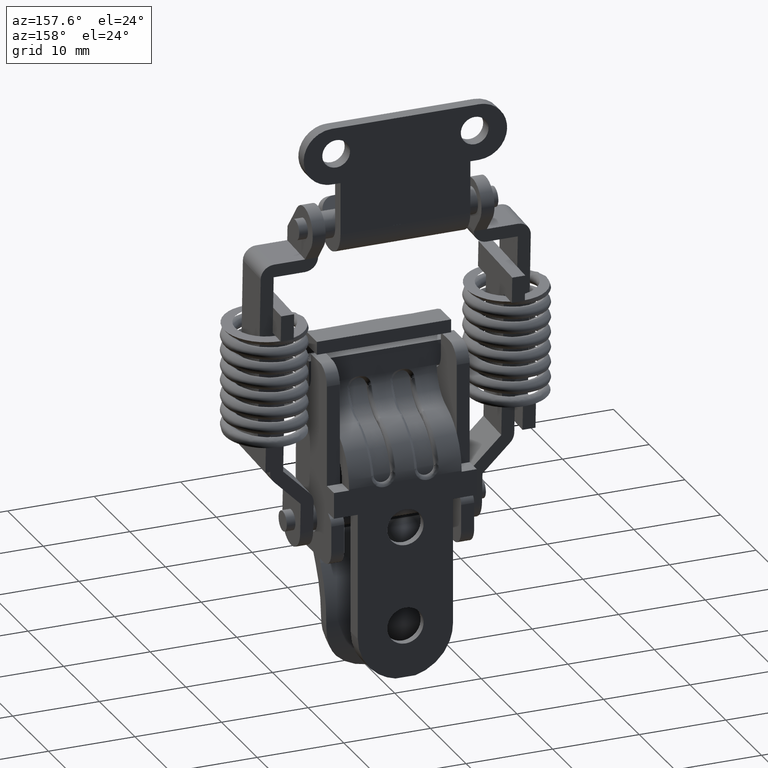
[diagram: clean part render]
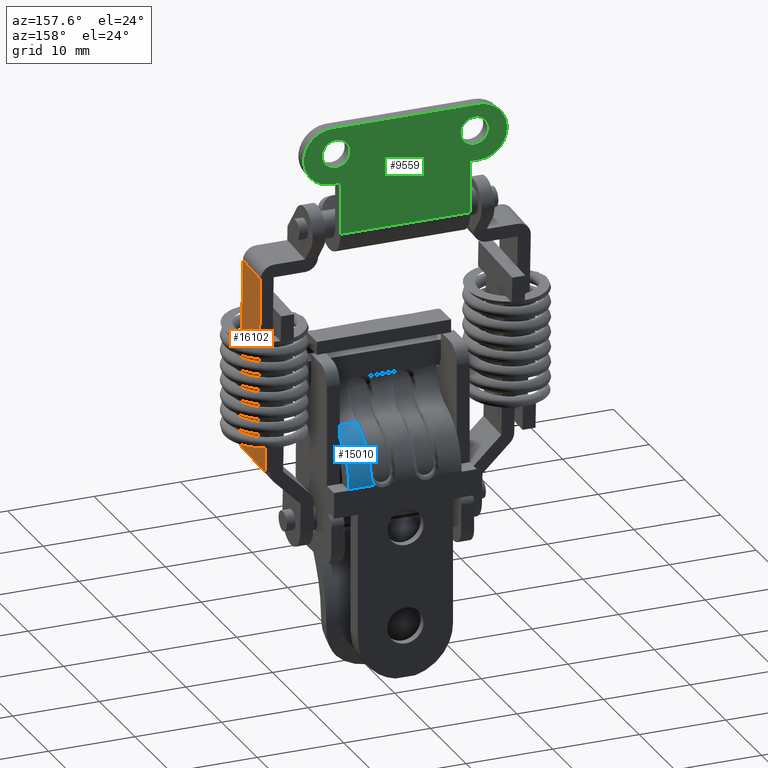
[diagram: same view with three faces highlighted in distinct colors, each labeled with its STEP entity id]
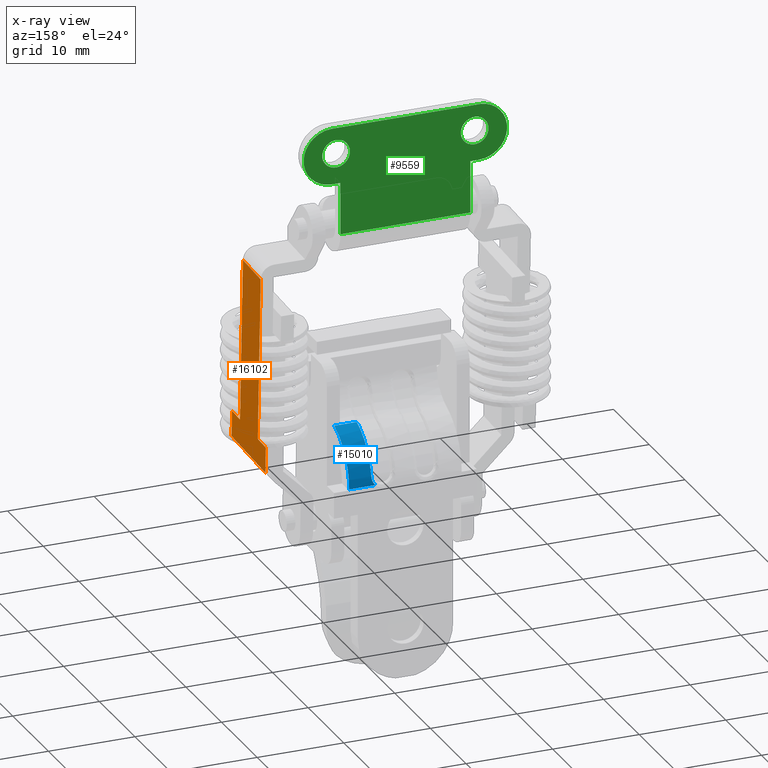
[diagram: x-ray of the same camera — body ghosted, the three highlighted faces saturated]
A machine part, auxiliary view with three faces highlighted in distinct colors.
The next image is the same camera in x-ray (body ghosted, the three faces saturated) — at least one of them is partly hidden behind the body in this view.
Their STEP definitions:

[orange] entity #16102 — the highlighted face is a freeform B-spline surface patch.
#15635=CARTESIAN_POINT('',(-4.499999999999949,-15.600000000000000,-5.0));
#15636=VERTEX_POINT('',#15635);
#15652=CARTESIAN_POINT('',(0.500000000000000,-15.600000000000000,-5.0));
#15653=VERTEX_POINT('',#15652);
#15654=CARTESIAN_POINT('',(0.500000000000000,-15.600000000000000,-5.0));
#15655=CARTESIAN_POINT('',(-4.499999999999949,-15.600000000000000,-5.0));
#15656=QUASI_UNIFORM_CURVE('',1,(#15654,#15655),.UNSPECIFIED.,.F.,.U.);
#15657=EDGE_CURVE('',#15653,#15636,#15656,.T.);
#15696=CARTESIAN_POINT('',(0.500000000000000,-15.600000000000000,-24.0));
#15697=VERTEX_POINT('',#15696);
#15703=CARTESIAN_POINT('',(2.750000000000000,-15.600000000000000,-24.0));
#15704=VERTEX_POINT('',#15703);
#15705=CARTESIAN_POINT('',(2.750000000000000,-15.600000000000000,-24.0));
#15706=CARTESIAN_POINT('',(0.500000000000000,-15.600000000000000,-24.0));
#15707=QUASI_UNIFORM_CURVE('',1,(#15705,#15706),.UNSPECIFIED.,.F.,.U.);
#15708=EDGE_CURVE('',#15704,#15697,#15707,.T.);
#15799=CARTESIAN_POINT('',(0.500000000000000,-15.600000000000000,-24.0));
#15800=CARTESIAN_POINT('',(0.500000000000000,-15.600000000000000,-5.0));
#15801=QUASI_UNIFORM_CURVE('',1,(#15799,#15800),.UNSPECIFIED.,.F.,.U.);
#15802=EDGE_CURVE('',#15697,#15653,#15801,.T.);
#15880=CARTESIAN_POINT('',(-6.750000000000000,-15.600000000000000,-27.0));
#15881=VERTEX_POINT('',#15880);
#15882=CARTESIAN_POINT('',(2.750000000000000,-15.600000000000000,-27.0));
#15883=VERTEX_POINT('',#15882);
#15884=CARTESIAN_POINT('',(-6.750000000000000,-15.600000000000000,-27.0));
#15885=CARTESIAN_POINT('',(2.750000000000000,-15.600000000000000,-27.0));
#15886=QUASI_UNIFORM_CURVE('',1,(#15884,#15885),.UNSPECIFIED.,.F.,.U.);
#15887=EDGE_CURVE('',#15881,#15883,#15886,.T.);
#15916=CARTESIAN_POINT('',(-6.750000000000000,-15.600000000000000,-24.0));
#15917=VERTEX_POINT('',#15916);
#15918=CARTESIAN_POINT('',(-6.750000000000000,-15.600000000000000,-24.0));
#15919=CARTESIAN_POINT('',(-6.750000000000000,-15.600000000000000,-27.0));
#15920=QUASI_UNIFORM_CURVE('',1,(#15918,#15919),.UNSPECIFIED.,.F.,.U.);
#15921=EDGE_CURVE('',#15917,#15881,#15920,.T.);
#15946=CARTESIAN_POINT('',(-4.499999999999949,-15.600000000000000,-24.0));
#15947=VERTEX_POINT('',#15946);
#15959=CARTESIAN_POINT('',(-4.499999999999949,-15.600000000000000,-24.0));
#15960=CARTESIAN_POINT('',(-6.750000000000000,-15.600000000000000,-24.0));
#15961=QUASI_UNIFORM_CURVE('',1,(#15959,#15960),.UNSPECIFIED.,.F.,.U.);
#15962=EDGE_CURVE('',#15947,#15917,#15961,.T.);
#15972=CARTESIAN_POINT('',(-4.499999999999949,-15.600000000000000,-24.0));
#15973=CARTESIAN_POINT('',(-4.499999999999949,-15.600000000000000,-5.0));
#15974=QUASI_UNIFORM_CURVE('',1,(#15972,#15973),.UNSPECIFIED.,.F.,.U.);
#15975=EDGE_CURVE('',#15947,#15636,#15974,.T.);
#16083=CARTESIAN_POINT('',(-7.224524981587156,-15.600000000000000,-3.901100042640270));
#16084=CARTESIAN_POINT('',(3.224525236397012,-15.600000000000000,-3.901100042640270));
#16085=CARTESIAN_POINT('',(-7.224524981587156,-15.600000000000000,-28.098900547445719));
#16086=CARTESIAN_POINT('',(3.224525236397012,-15.600000000000000,-28.098900547445719));
#16087=B_SPLINE_SURFACE_WITH_KNOTS('',1,1,((#16083,#16085),(#16084,#16086)),.UNSPECIFIED.,.F.,.F.,.U.,(2,2),(2,2),(0.0,10.449050217984171),(0.0,24.197800504805450),.UNSPECIFIED.);
#16088=ORIENTED_EDGE('',*,*,#15802,.T.);
#16089=ORIENTED_EDGE('',*,*,#15657,.T.);
#16090=ORIENTED_EDGE('',*,*,#15975,.F.);
#16091=ORIENTED_EDGE('',*,*,#15962,.T.);
#16092=ORIENTED_EDGE('',*,*,#15921,.T.);
#16093=ORIENTED_EDGE('',*,*,#15887,.T.);
#16094=CARTESIAN_POINT('',(2.750000000000000,-15.600000000000000,-27.0));
#16095=CARTESIAN_POINT('',(2.750000000000000,-15.600000000000000,-24.0));
#16096=QUASI_UNIFORM_CURVE('',1,(#16094,#16095),.UNSPECIFIED.,.F.,.U.);
#16097=EDGE_CURVE('',#15883,#15704,#16096,.T.);
#16098=ORIENTED_EDGE('',*,*,#16097,.T.);
#16099=ORIENTED_EDGE('',*,*,#15708,.T.);
#16100=EDGE_LOOP('',(#16088,#16089,#16090,#16091,#16092,#16093,#16098,#16099));
#16101=FACE_OUTER_BOUND('',#16100,.T.);
#16102=ADVANCED_FACE('',(#16101),#16087,.F.);

[blue] entity #15010 — the highlighted face is a freeform B-spline surface patch.
#12960=CARTESIAN_POINT('',(2.999999999999860,-3.479795897113115,-29.883612500000201));
#12961=VERTEX_POINT('',#12960);
#13129=CARTESIAN_POINT('',(2.903561705980965,-3.899999999999905,-28.812183928571649));
#13130=VERTEX_POINT('',#13129);
#13146=CARTESIAN_POINT('',(2.999999999999860,-3.479795897113135,-29.883612500000201));
#13147=CARTESIAN_POINT('',(2.999999999999860,-3.514107169956451,-29.847593166760969));
#13148=CARTESIAN_POINT('',(2.999676069784027,-3.546449874766465,-29.809942041265721));
#13149=CARTESIAN_POINT('',(2.998198967999248,-3.607300019605362,-29.731463168348601));
#13150=CARTESIAN_POINT('',(2.997041006113011,-3.635784018679470,-29.690623745079670));
#13151=CARTESIAN_POINT('',(2.992137487153695,-3.714342259351521,-29.565382568726761));
#13152=CARTESIAN_POINT('',(2.986959680419868,-3.758090341742632,-29.477673645367840));
#13153=CARTESIAN_POINT('',(2.975507518558604,-3.811255369140669,-29.340079577522499));
#13154=CARTESIAN_POINT('',(2.971045888855014,-3.826946753993689,-29.292950726797621));
#13155=CARTESIAN_POINT('',(2.960912106005031,-3.853637306245968,-29.198194961839810));
#13156=CARTESIAN_POINT('',(2.955245248826526,-3.864677744324368,-29.150544592164771));
#13157=CARTESIAN_POINT('',(2.936378097468225,-3.891152569388062,-29.006826774419981));
#13158=CARTESIAN_POINT('',(2.921314447044049,-3.899999999999884,-28.910001370733450));
#13159=CARTESIAN_POINT('',(2.903561705980965,-3.899999999999885,-28.812183928571649));
#13160=B_SPLINE_CURVE_WITH_KNOTS('',3,(#13146,#13147,#13148,#13149,#13150,#13151,#13152,#13153,#13154,#13155,#13156,#13157,#13158,#13159),.UNSPECIFIED.,.F.,.U.,(4,2,2,2,2,2,4),(0.0,0.124999999999998,0.249999999999996,0.499999999999991,0.624999999999993,0.749999999999996,1.0),.UNSPECIFIED.);
#13161=EDGE_CURVE('',#12961,#13130,#13160,.T.);
#13265=CARTESIAN_POINT('',(-1.200000000000026,-3.899999999999905,-24.159977291498549));
#13266=VERTEX_POINT('',#13265);
#13282=CARTESIAN_POINT('',(2.903561705980964,-3.899999999999905,-28.812183928571649));
#13283=CARTESIAN_POINT('',(2.256522414106458,-3.899999999999904,-25.247003301847830));
#13284=CARTESIAN_POINT('',(-1.200000000000031,-3.899999999999905,-24.159977291498560));
#13292=(BOUNDED_CURVE()B_SPLINE_CURVE(2,(#13282,#13283,#13284),.UNSPECIFIED.,.F.,.U.)CURVE()GEOMETRIC_REPRESENTATION_ITEM()QUASI_UNIFORM_CURVE()RATIONAL_B_SPLINE_CURVE((1.0,0.856015295209841,1.0))REPRESENTATION_ITEM(''));
#13293=EDGE_CURVE('',#13130,#13266,#13292,.T.);
#14464=CARTESIAN_POINT('',(-1.200000000000024,-6.500000000000000,-24.159977291498549));
#14465=VERTEX_POINT('',#14464);
#14532=CARTESIAN_POINT('',(3.0,-6.500000000000000,-29.883612500000201));
#14533=VERTEX_POINT('',#14532);
#14539=CARTESIAN_POINT('',(-1.200000000000031,-6.500000000000000,-24.159977291498560));
#14540=CARTESIAN_POINT('',(2.999999999999855,-6.500000000000000,-25.480816185768241));
#14541=CARTESIAN_POINT('',(3.0,-6.500000000000000,-29.883612500000201));
#14549=(BOUNDED_CURVE()B_SPLINE_CURVE(2,(#14539,#14540,#14541),.UNSPECIFIED.,.F.,.U.)CURVE()GEOMETRIC_REPRESENTATION_ITEM()QUASI_UNIFORM_CURVE()RATIONAL_B_SPLINE_CURVE((1.0,0.806225774829861,1.0))REPRESENTATION_ITEM(''));
#14550=EDGE_CURVE('',#14465,#14533,#14549,.T.);
#14981=CARTESIAN_POINT('',(-1.250016044311251,-3.404290794540942,-24.144487466092031));
#14982=CARTESIAN_POINT('',(-1.250016044311251,-6.577392730136477,-24.144487466092031));
#14983=CARTESIAN_POINT('',(3.233879853406070,-3.404290794540942,-25.511724777289139));
#14984=CARTESIAN_POINT('',(3.233879853406070,-6.577392730136477,-25.511724777289139));
#14985=CARTESIAN_POINT('',(2.992007928793795,-3.404290794540942,-30.193194445970121));
#14986=CARTESIAN_POINT('',(2.992007928793795,-6.577392730136477,-30.193194445970121));
#14994=(BOUNDED_SURFACE()B_SPLINE_SURFACE(1,2,((#14981,#14983,#14985),(#14982,#14984,#14986)),.UNSPECIFIED.,.F.,.F.,.U.)B_SPLINE_SURFACE_WITH_KNOTS((2,2),(3,3),(0.0,3.173101935595535),(0.0,8.263862718951959),.UNSPECIFIED.)GEOMETRIC_REPRESENTATION_ITEM()RATIONAL_B_SPLINE_SURFACE(((1.0,0.788010753606722,1.0),(1.0,0.788010753606722,1.0)))REPRESENTATION_ITEM('')SURFACE());
#14995=CARTESIAN_POINT('',(2.999999999999860,-3.479795897113115,-29.883612500000201));
#14996=CARTESIAN_POINT('',(3.0,-6.500000000000000,-29.883612500000201));
#14997=QUASI_UNIFORM_CURVE('',1,(#14995,#14996),.UNSPECIFIED.,.F.,.U.);
#14998=EDGE_CURVE('',#12961,#14533,#14997,.T.);
#14999=ORIENTED_EDGE('',*,*,#14998,.F.);
#15000=ORIENTED_EDGE('',*,*,#13161,.T.);
#15001=ORIENTED_EDGE('',*,*,#13293,.T.);
#15002=CARTESIAN_POINT('',(-1.200000000000026,-3.899999999999905,-24.159977291498549));
#15003=CARTESIAN_POINT('',(-1.200000000000024,-6.500000000000000,-24.159977291498549));
#15004=QUASI_UNIFORM_CURVE('',1,(#15002,#15003),.UNSPECIFIED.,.F.,.U.);
#15005=EDGE_CURVE('',#13266,#14465,#15004,.T.);
#15006=ORIENTED_EDGE('',*,*,#15005,.T.);
#15007=ORIENTED_EDGE('',*,*,#14550,.T.);
#15008=EDGE_LOOP('',(#14999,#15000,#15001,#15006,#15007));
#15009=FACE_OUTER_BOUND('',#15008,.T.);
#15010=ADVANCED_FACE('',(#15009),#14994,.T.);

[green] entity #9559 — the highlighted face is a freeform B-spline surface patch.
#8617=CARTESIAN_POINT('',(2.999999999999890,6.411184757821195,9.311145224523433));
#8618=VERTEX_POINT('',#8617);
#8619=CARTESIAN_POINT('',(2.999999999999890,8.0,11.100000000000000));
#8620=VERTEX_POINT('',#8619);
#8621=CARTESIAN_POINT('',(2.999999999999890,6.411184757821195,9.311145224523433));
#8622=CARTESIAN_POINT('',(2.999999999999890,6.400000000000000,9.405241408530918));
#8623=CARTESIAN_POINT('',(2.999999999999890,6.400000000000000,9.500000000000000));
#8624=CARTESIAN_POINT('',(2.999999999999890,6.400000000000000,11.100000000000000));
#8625=CARTESIAN_POINT('',(2.999999999999890,8.0,11.100000000000000));
#8633=(BOUNDED_CURVE()B_SPLINE_CURVE(2,(#8621,#8622,#8623,#8624,#8625),.UNSPECIFIED.,.F.,.U.)B_SPLINE_CURVE_WITH_KNOTS((3,2,3),(0.229562473510165,0.250000000000000,0.500000000000000),.UNSPECIFIED.)CURVE()GEOMETRIC_REPRESENTATION_ITEM()RATIONAL_B_SPLINE_CURVE((0.956026754177146,0.976055948327228,1.0,0.707106781186548,1.0))REPRESENTATION_ITEM(''));
#8634=EDGE_CURVE('',#8618,#8620,#8633,.T.);
#8675=CARTESIAN_POINT('',(2.999999999999890,9.597015677460092,9.597677663499299));
#8676=VERTEX_POINT('',#8675);
#8682=CARTESIAN_POINT('',(2.999999999999890,8.0,11.100000000000000));
#8683=CARTESIAN_POINT('',(2.999999999999890,9.505129706589219,11.100000000000000));
#8684=CARTESIAN_POINT('',(2.999999999999890,9.597015677460092,9.597677663499299));
#8692=(BOUNDED_CURVE()B_SPLINE_CURVE(2,(#8682,#8683,#8684),.UNSPECIFIED.,.F.,.U.)B_SPLINE_CURVE_WITH_KNOTS((3,3),(0.500000000000000,0.739332962189345),.UNSPECIFIED.)CURVE()GEOMETRIC_REPRESENTATION_ITEM()RATIONAL_B_SPLINE_CURVE((1.0,0.719603993344818,0.976072041560419))REPRESENTATION_ITEM(''));
#8693=EDGE_CURVE('',#8620,#8676,#8692,.T.);
#8716=CARTESIAN_POINT('',(2.999999999999890,8.0,7.900000000000000));
#8717=VERTEX_POINT('',#8716);
#8718=CARTESIAN_POINT('',(2.999999999999890,8.0,7.900000000000000));
#8719=CARTESIAN_POINT('',(2.999999999999890,6.578920758524206,7.899999999999999));
#8720=CARTESIAN_POINT('',(2.999999999999889,6.411184757821195,9.311145224523433));
#8728=(BOUNDED_CURVE()B_SPLINE_CURVE(2,(#8718,#8719,#8720),.UNSPECIFIED.,.F.,.U.)B_SPLINE_CURVE_WITH_KNOTS((3,3),(0.0,0.229562473510165),.UNSPECIFIED.)CURVE()GEOMETRIC_REPRESENTATION_ITEM()RATIONAL_B_SPLINE_CURVE((1.0,0.731050832859319,0.956026754177147))REPRESENTATION_ITEM(''));
#8729=EDGE_CURVE('',#8717,#8618,#8728,.T.);
#8731=CARTESIAN_POINT('',(2.999999999999890,9.597015677460092,9.597677663499299));
#8732=CARTESIAN_POINT('',(2.999999999999890,9.600000000000001,9.548884421521953));
#8733=CARTESIAN_POINT('',(2.999999999999890,9.600000000000001,9.500000000000000));
#8734=CARTESIAN_POINT('',(2.999999999999890,9.600000000000001,7.900000000000000));
#8735=CARTESIAN_POINT('',(2.999999999999890,8.0,7.900000000000000));
#8743=(BOUNDED_CURVE()B_SPLINE_CURVE(2,(#8731,#8732,#8733,#8734,#8735),.UNSPECIFIED.,.F.,.U.)B_SPLINE_CURVE_WITH_KNOTS((3,2,3),(0.739332962189345,0.750000000000000,1.0),.UNSPECIFIED.)CURVE()GEOMETRIC_REPRESENTATION_ITEM()RATIONAL_B_SPLINE_CURVE((0.976072041560421,0.987502787841730,1.0,0.707106781186548,1.0))REPRESENTATION_ITEM(''));
#8744=EDGE_CURVE('',#8676,#8717,#8743,.T.);
#8803=CARTESIAN_POINT('',(2.999999999999890,-9.588815242178704,9.311145224523433));
#8804=VERTEX_POINT('',#8803);
#8805=CARTESIAN_POINT('',(2.999999999999890,-7.999999999999900,11.100000000000000));
#8806=VERTEX_POINT('',#8805);
#8807=CARTESIAN_POINT('',(2.999999999999890,-9.588815242178704,9.311145224523433));
#8808=CARTESIAN_POINT('',(2.999999999999890,-9.599999999999900,9.405241408530916));
#8809=CARTESIAN_POINT('',(2.999999999999890,-9.599999999999900,9.500000000000000));
#8810=CARTESIAN_POINT('',(2.999999999999890,-9.599999999999900,11.100000000000000));
#8811=CARTESIAN_POINT('',(2.999999999999890,-7.999999999999900,11.100000000000000));
#8819=(BOUNDED_CURVE()B_SPLINE_CURVE(2,(#8807,#8808,#8809,#8810,#8811),.UNSPECIFIED.,.F.,.U.)B_SPLINE_CURVE_WITH_KNOTS((3,2,3),(0.229562473510165,0.250000000000000,0.500000000000000),.UNSPECIFIED.)CURVE()GEOMETRIC_REPRESENTATION_ITEM()RATIONAL_B_SPLINE_CURVE((0.956026754177146,0.976055948327228,1.0,0.707106781186548,1.0))REPRESENTATION_ITEM(''));
#8820=EDGE_CURVE('',#8804,#8806,#8819,.T.);
#8861=CARTESIAN_POINT('',(2.999999999999890,-6.402984322539808,9.597677663499299));
#8862=VERTEX_POINT('',#8861);
#8868=CARTESIAN_POINT('',(2.999999999999890,-7.999999999999900,11.100000000000000));
#8869=CARTESIAN_POINT('',(2.999999999999890,-6.494870293410681,11.100000000000000));
#8870=CARTESIAN_POINT('',(2.999999999999890,-6.402984322539808,9.597677663499299));
#8878=(BOUNDED_CURVE()B_SPLINE_CURVE(2,(#8868,#8869,#8870),.UNSPECIFIED.,.F.,.U.)B_SPLINE_CURVE_WITH_KNOTS((3,3),(0.500000000000000,0.739332962189345),.UNSPECIFIED.)CURVE()GEOMETRIC_REPRESENTATION_ITEM()RATIONAL_B_SPLINE_CURVE((1.0,0.719603993344818,0.976072041560419))REPRESENTATION_ITEM(''));
#8879=EDGE_CURVE('',#8806,#8862,#8878,.T.);
#8902=CARTESIAN_POINT('',(2.999999999999890,-7.999999999999900,7.900000000000000));
#8903=VERTEX_POINT('',#8902);
#8904=CARTESIAN_POINT('',(2.999999999999890,-7.999999999999900,7.900000000000000));
#8905=CARTESIAN_POINT('',(2.999999999999890,-9.421079241475693,7.899999999999999));
#8906=CARTESIAN_POINT('',(2.999999999999889,-9.588815242178704,9.311145224523433));
#8914=(BOUNDED_CURVE()B_SPLINE_CURVE(2,(#8904,#8905,#8906),.UNSPECIFIED.,.F.,.U.)B_SPLINE_CURVE_WITH_KNOTS((3,3),(0.0,0.229562473510165),.UNSPECIFIED.)CURVE()GEOMETRIC_REPRESENTATION_ITEM()RATIONAL_B_SPLINE_CURVE((1.0,0.731050832859319,0.956026754177147))REPRESENTATION_ITEM(''));
#8915=EDGE_CURVE('',#8903,#8804,#8914,.T.);
#8917=CARTESIAN_POINT('',(2.999999999999890,-6.402984322539808,9.597677663499299));
#8918=CARTESIAN_POINT('',(2.999999999999891,-6.399999999999901,9.548884421521954));
#8919=CARTESIAN_POINT('',(2.999999999999890,-6.399999999999900,9.500000000000000));
#8920=CARTESIAN_POINT('',(2.999999999999890,-6.399999999999899,7.900000000000000));
#8921=CARTESIAN_POINT('',(2.999999999999890,-7.999999999999900,7.900000000000000));
#8929=(BOUNDED_CURVE()B_SPLINE_CURVE(2,(#8917,#8918,#8919,#8920,#8921),.UNSPECIFIED.,.F.,.U.)B_SPLINE_CURVE_WITH_KNOTS((3,2,3),(0.739332962189345,0.750000000000000,1.0),.UNSPECIFIED.)CURVE()GEOMETRIC_REPRESENTATION_ITEM()RATIONAL_B_SPLINE_CURVE((0.976072041560420,0.987502787841730,1.0,0.707106781186548,1.0))REPRESENTATION_ITEM(''));
#8930=EDGE_CURVE('',#8862,#8903,#8929,.T.);
#9115=CARTESIAN_POINT('',(2.999999999999885,8.500000000000000,12.500000000000000));
#9116=VERTEX_POINT('',#9115);
#9124=CARTESIAN_POINT('',(2.999999999999885,8.500000000000000,6.000000000000201));
#9125=VERTEX_POINT('',#9124);
#9126=CARTESIAN_POINT('',(2.999999999999885,8.500000000000000,6.000000000000201));
#9127=CARTESIAN_POINT('',(2.999999999999886,11.750000000000004,6.0));
#9128=CARTESIAN_POINT('',(2.999999999999885,11.750000000000000,9.250000000000000));
#9129=CARTESIAN_POINT('',(2.999999999999886,11.750000000000004,12.499999999999998));
#9130=CARTESIAN_POINT('',(2.999999999999885,8.500000000000000,12.500000000000000));
#9138=(BOUNDED_CURVE()B_SPLINE_CURVE(2,(#9126,#9127,#9128,#9129,#9130),.UNSPECIFIED.,.F.,.U.)B_SPLINE_CURVE_WITH_KNOTS((3,2,3),(0.0,0.500000000000000,1.0),.UNSPECIFIED.)CURVE()GEOMETRIC_REPRESENTATION_ITEM()RATIONAL_B_SPLINE_CURVE((1.0,0.707106781186547,1.0,0.707106781186547,1.0))REPRESENTATION_ITEM(''));
#9139=EDGE_CURVE('',#9125,#9116,#9138,.T.);
#9203=CARTESIAN_POINT('',(2.999999999999885,-8.500000000000000,6.000000000000201));
#9204=VERTEX_POINT('',#9203);
#9210=CARTESIAN_POINT('',(2.999999999999885,-8.500000000000000,12.500000000000000));
#9211=VERTEX_POINT('',#9210);
#9212=CARTESIAN_POINT('',(2.999999999999885,-8.500000000000000,12.500000000000000));
#9213=CARTESIAN_POINT('',(2.999999999999886,-11.750000000000004,12.499999999999998));
#9214=CARTESIAN_POINT('',(2.999999999999885,-11.750000000000000,9.250000000000000));
#9215=CARTESIAN_POINT('',(2.999999999999886,-11.750000000000004,6.0));
#9216=CARTESIAN_POINT('',(2.999999999999885,-8.500000000000000,6.000000000000201));
#9224=(BOUNDED_CURVE()B_SPLINE_CURVE(2,(#9212,#9213,#9214,#9215,#9216),.UNSPECIFIED.,.F.,.U.)B_SPLINE_CURVE_WITH_KNOTS((3,2,3),(0.0,0.500000000000000,1.0),.UNSPECIFIED.)CURVE()GEOMETRIC_REPRESENTATION_ITEM()RATIONAL_B_SPLINE_CURVE((1.0,0.707106781186547,1.0,0.707106781186547,1.0))REPRESENTATION_ITEM(''));
#9225=EDGE_CURVE('',#9211,#9204,#9224,.T.);
#9240=CARTESIAN_POINT('',(2.999999999999890,-7.500000000000000,6.000000000000201));
#9241=VERTEX_POINT('',#9240);
#9242=CARTESIAN_POINT('',(2.999999999999885,-8.500000000000000,6.000000000000201));
#9243=CARTESIAN_POINT('',(2.999999999999890,-7.500000000000000,6.000000000000201));
#9244=QUASI_UNIFORM_CURVE('',1,(#9242,#9243),.UNSPECIFIED.,.F.,.U.);
#9245=EDGE_CURVE('',#9204,#9241,#9244,.T.);
#9300=CARTESIAN_POINT('',(2.999999999999885,-7.500000000000000,4.679857E-017));
#9301=VERTEX_POINT('',#9300);
#9307=CARTESIAN_POINT('',(2.999999999999890,-7.500000000000000,6.000000000000201));
#9308=CARTESIAN_POINT('',(2.999999999999885,-7.500000000000000,4.679857E-017));
#9309=QUASI_UNIFORM_CURVE('',1,(#9307,#9308),.UNSPECIFIED.,.F.,.U.);
#9310=EDGE_CURVE('',#9241,#9301,#9309,.T.);
#9351=CARTESIAN_POINT('',(2.999999999999890,7.500000000000000,6.000000000000201));
#9352=VERTEX_POINT('',#9351);
#9353=CARTESIAN_POINT('',(2.999999999999885,8.500000000000000,6.000000000000201));
#9354=CARTESIAN_POINT('',(2.999999999999890,7.500000000000000,6.000000000000201));
#9355=QUASI_UNIFORM_CURVE('',1,(#9353,#9354),.UNSPECIFIED.,.F.,.U.);
#9356=EDGE_CURVE('',#9125,#9352,#9355,.T.);
#9409=CARTESIAN_POINT('',(2.999999999999885,7.500000000000000,4.679857E-017));
#9410=VERTEX_POINT('',#9409);
#9411=CARTESIAN_POINT('',(2.999999999999890,7.500000000000000,6.000000000000201));
#9412=CARTESIAN_POINT('',(2.999999999999885,7.500000000000000,4.679857E-017));
#9413=QUASI_UNIFORM_CURVE('',1,(#9411,#9412),.UNSPECIFIED.,.F.,.U.);
#9414=EDGE_CURVE('',#9352,#9410,#9413,.T.);
#9520=CARTESIAN_POINT('',(2.999999999999885,-7.500000000000000,4.679857E-017));
#9521=CARTESIAN_POINT('',(2.999999999999885,7.500000000000000,4.679857E-017));
#9522=QUASI_UNIFORM_CURVE('',1,(#9520,#9521),.UNSPECIFIED.,.F.,.U.);
#9523=EDGE_CURVE('',#9301,#9410,#9522,.T.);
#9528=CARTESIAN_POINT('',(2.999999999999885,-12.923824954452311,13.124374975772570));
#9529=CARTESIAN_POINT('',(2.999999999999885,-12.923824954452311,-0.624375311048700));
#9530=CARTESIAN_POINT('',(2.999999999999885,12.923825584771430,13.124374975772580));
#9531=CARTESIAN_POINT('',(2.999999999999885,12.923825584771430,-0.624375311048700));
#9532=B_SPLINE_SURFACE_WITH_KNOTS('',1,1,((#9528,#9530),(#9529,#9531)),.UNSPECIFIED.,.F.,.F.,.U.,(2,2),(2,2),(0.0,13.748750286821281),(0.0,25.847650539223739),.UNSPECIFIED.);
#9533=ORIENTED_EDGE('',*,*,#9225,.T.);
#9534=ORIENTED_EDGE('',*,*,#9245,.T.);
#9535=ORIENTED_EDGE('',*,*,#9310,.T.);
#9536=ORIENTED_EDGE('',*,*,#9523,.T.);
#9537=ORIENTED_EDGE('',*,*,#9414,.F.);
#9538=ORIENTED_EDGE('',*,*,#9356,.F.);
#9539=ORIENTED_EDGE('',*,*,#9139,.T.);
#9540=CARTESIAN_POINT('',(2.999999999999885,-8.500000000000000,12.500000000000000));
#9541=CARTESIAN_POINT('',(2.999999999999885,8.500000000000000,12.500000000000000));
#9542=QUASI_UNIFORM_CURVE('',1,(#9540,#9541),.UNSPECIFIED.,.F.,.U.);
#9543=EDGE_CURVE('',#9211,#9116,#9542,.T.);
#9544=ORIENTED_EDGE('',*,*,#9543,.F.);
#9545=EDGE_LOOP('',(#9533,#9534,#9535,#9536,#9537,#9538,#9539,#9544));
#9546=FACE_OUTER_BOUND('',#9545,.T.);
#9547=ORIENTED_EDGE('',*,*,#8879,.T.);
#9548=ORIENTED_EDGE('',*,*,#8930,.T.);
#9549=ORIENTED_EDGE('',*,*,#8915,.T.);
#9550=ORIENTED_EDGE('',*,*,#8820,.T.);
#9551=EDGE_LOOP('',(#9547,#9548,#9549,#9550));
#9552=FACE_BOUND('',#9551,.T.);
#9553=ORIENTED_EDGE('',*,*,#8693,.T.);
#9554=ORIENTED_EDGE('',*,*,#8744,.T.);
#9555=ORIENTED_EDGE('',*,*,#8729,.T.);
#9556=ORIENTED_EDGE('',*,*,#8634,.T.);
#9557=EDGE_LOOP('',(#9553,#9554,#9555,#9556));
#9558=FACE_BOUND('',#9557,.T.);
#9559=ADVANCED_FACE('',(#9546,#9552,#9558),#9532,.T.);